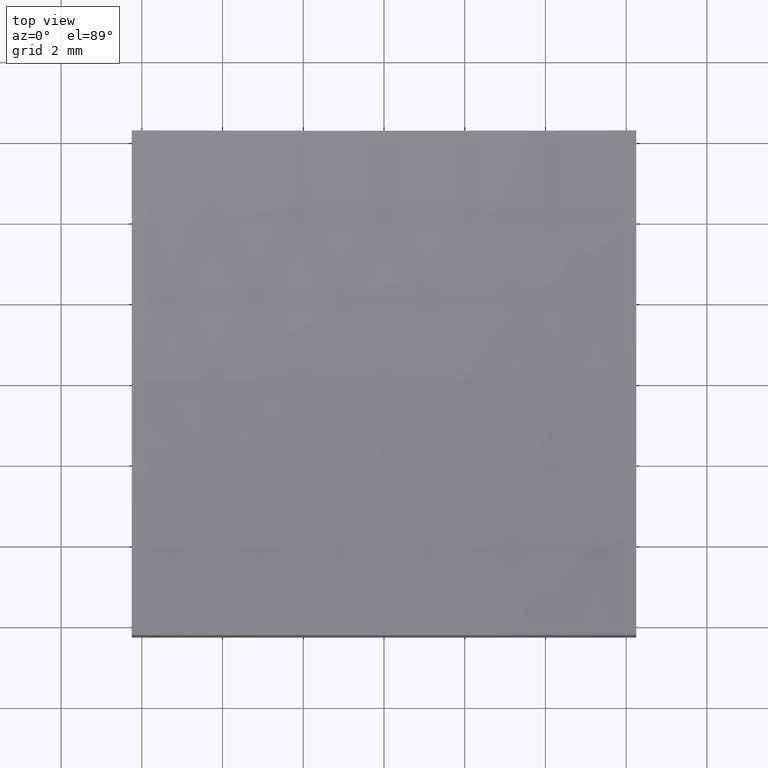
[diagram: clean part render]
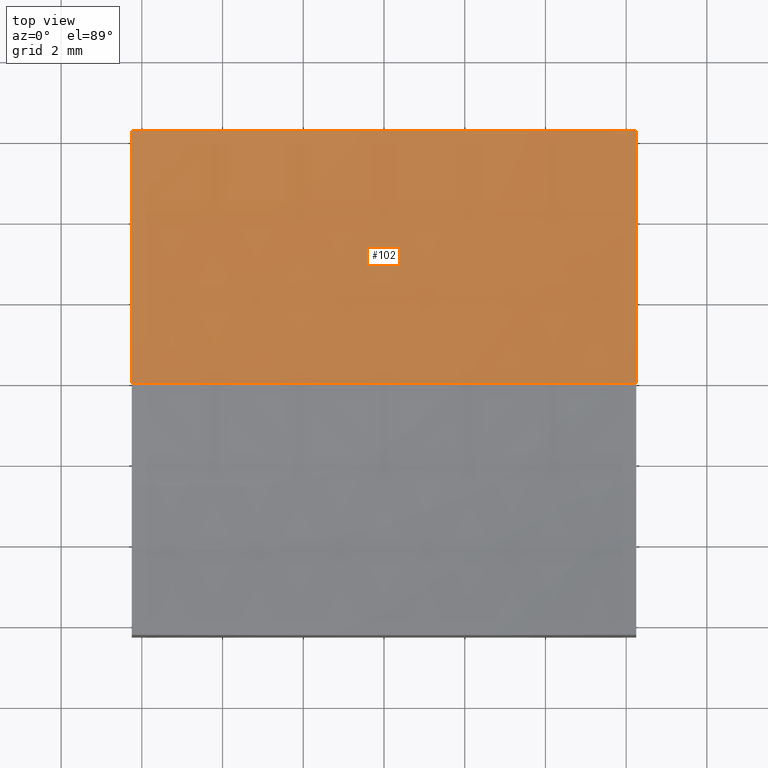
[diagram: same view with one face highlighted and labeled with its STEP entity id]
A machine part, top view. The second image highlights one B-rep face of the part: STEP entity #102.
In plain terms, the highlighted spherical surface has radius 40 mm.
Its self-contained STEP definition (entity closure, byte-faithful):
#8 = CARTESIAN_POINT ( 'NONE',  ( -6.250000000000000000, 7.654042494670970425E-16, 3.491298426802226018 ) ) ;
#12 = DIRECTION ( 'NONE',  ( 1.000000000000000000, 0.0000000000000000000, -0.0000000000000000000 ) ) ;
#14 = DIRECTION ( 'NONE',  ( 0.0000000000000000000, 0.0000000000000000000, -1.000000000000000000 ) ) ;
#19 = AXIS2_PLACEMENT_3D ( 'NONE', #210, #148, #212 ) ;
#23 = VERTEX_POINT ( 'NONE', #174 ) ;
#29 = ORIENTED_EDGE ( 'NONE', *, *, #155, .T. ) ;
#34 = DIRECTION ( 'NONE',  ( 0.0000000000000000000, 0.0000000000000000000, -1.000000000000000000 ) ) ;
#35 = CARTESIAN_POINT ( 'NONE',  ( 6.250000000000000000, 0.0000000000000000000, 3.491298426802226018 ) ) ;
#37 = AXIS2_PLACEMENT_3D ( 'NONE', #78, #12, #34 ) ;
#43 = ORIENTED_EDGE ( 'NONE', *, *, #96, .T. ) ;
#46 = AXIS2_PLACEMENT_3D ( 'NONE', #119, #251, #116 ) ;
#50 = CARTESIAN_POINT ( 'NONE',  ( 5.265981236333619259E-15, 0.0000000000000000000, 43.00000000000000000 ) ) ;
#70 = AXIS2_PLACEMENT_3D ( 'NONE', #79, #177, #226 ) ;
#78 = CARTESIAN_POINT ( 'NONE',  ( 6.250000000000000000, 0.0000000000000000000, 43.00000000000000000 ) ) ;
#79 = CARTESIAN_POINT ( 'NONE',  ( -6.250000000000000000, 0.0000000000000000000, 43.00000000000000000 ) ) ;
#82 = AXIS2_PLACEMENT_3D ( 'NONE', #138, #246, #14 ) ;
#88 = CARTESIAN_POINT ( 'NONE',  ( 1.289056355451229731E-14, 0.0000000000000000000, 2.999999999999995559 ) ) ;
#89 = CIRCLE ( 'NONE', #82, 40.00000000000000711 ) ;
#96 = EDGE_CURVE ( 'NONE', #23, #125, #98, .T. ) ;
#98 = CIRCLE ( 'NONE', #19, 39.50870157319778286 ) ;
#102 = ADVANCED_FACE ( 'NONE', ( #219 ), #107, .F. ) ;
#103 = VERTEX_POINT ( 'NONE', #88 ) ;
#105 = CIRCLE ( 'NONE', #46, 40.00000000000000711 ) ;
#107 = SPHERICAL_SURFACE ( 'NONE', #202, 40.00000000000000711 ) ;
#116 = DIRECTION ( 'NONE',  ( -1.000000000000000000, 1.224646799147353207E-16, 0.0000000000000000000 ) ) ;
#119 = CARTESIAN_POINT ( 'NONE',  ( 5.265981236333619259E-15, 0.0000000000000000000, 43.00000000000000000 ) ) ;
#125 = VERTEX_POINT ( 'NONE', #128 ) ;
#128 = CARTESIAN_POINT ( 'NONE',  ( -6.250000000000000000, 6.250000000000000888, 3.988783664181906552 ) ) ;
#132 = DIRECTION ( 'NONE',  ( -0.0000000000000000000, 1.000000000000000000, 0.0000000000000000000 ) ) ;
#138 = CARTESIAN_POINT ( 'NONE',  ( 5.265981236333619259E-15, 0.0000000000000000000, 43.00000000000000000 ) ) ;
#141 = VERTEX_POINT ( 'NONE', #8 ) ;
#148 = DIRECTION ( 'NONE',  ( 0.0000000000000000000, 1.000000000000000000, 0.0000000000000000000 ) ) ;
#155 = EDGE_CURVE ( 'NONE', #164, #23, #244, .T. ) ;
#164 = VERTEX_POINT ( 'NONE', #35 ) ;
#168 = ORIENTED_EDGE ( 'NONE', *, *, #169, .F. ) ;
#169 = EDGE_CURVE ( 'NONE', #103, #141, #105, .T. ) ;
#171 = CIRCLE ( 'NONE', #70, 39.50870157319778286 ) ;
#174 = CARTESIAN_POINT ( 'NONE',  ( 6.250000000000000000, 6.250000000000000888, 3.988783664181906552 ) ) ;
#176 = EDGE_CURVE ( 'NONE', #141, #125, #171, .T. ) ;
#177 = DIRECTION ( 'NONE',  ( 1.000000000000000000, 0.0000000000000000000, -0.0000000000000000000 ) ) ;
#188 = ORIENTED_EDGE ( 'NONE', *, *, #211, .T. ) ;
#202 = AXIS2_PLACEMENT_3D ( 'NONE', #50, #132, #209 ) ;
#209 = DIRECTION ( 'NONE',  ( 1.000000000000000000, 0.0000000000000000000, 1.734723475976806848E-16 ) ) ;
#210 = CARTESIAN_POINT ( 'NONE',  ( 5.265981236333619259E-15, 6.250000000000000888, 43.00000000000000000 ) ) ;
#211 = EDGE_CURVE ( 'NONE', #103, #164, #89, .T. ) ;
#212 = DIRECTION ( 'NONE',  ( 0.0000000000000000000, 0.0000000000000000000, 1.000000000000000000 ) ) ;
#216 = ORIENTED_EDGE ( 'NONE', *, *, #176, .F. ) ;
#217 = EDGE_LOOP ( 'NONE', ( #168, #188, #29, #43, #216 ) ) ;
#219 = FACE_OUTER_BOUND ( 'NONE', #217, .T. ) ;
#226 = DIRECTION ( 'NONE',  ( 0.0000000000000000000, 0.0000000000000000000, -1.000000000000000000 ) ) ;
#244 = CIRCLE ( 'NONE', #37, 39.50870157319778286 ) ;
#246 = DIRECTION ( 'NONE',  ( 0.0000000000000000000, -1.000000000000000000, 0.0000000000000000000 ) ) ;
#251 = DIRECTION ( 'NONE',  ( 1.224646799147353207E-16, 1.000000000000000000, 1.584475191367326902E-32 ) ) ;